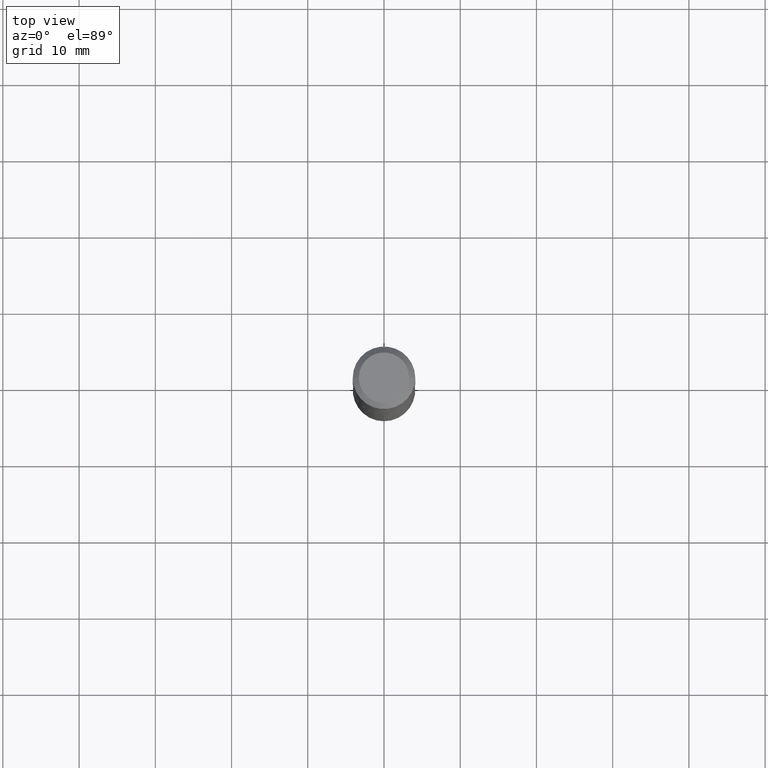
[diagram: clean part render]
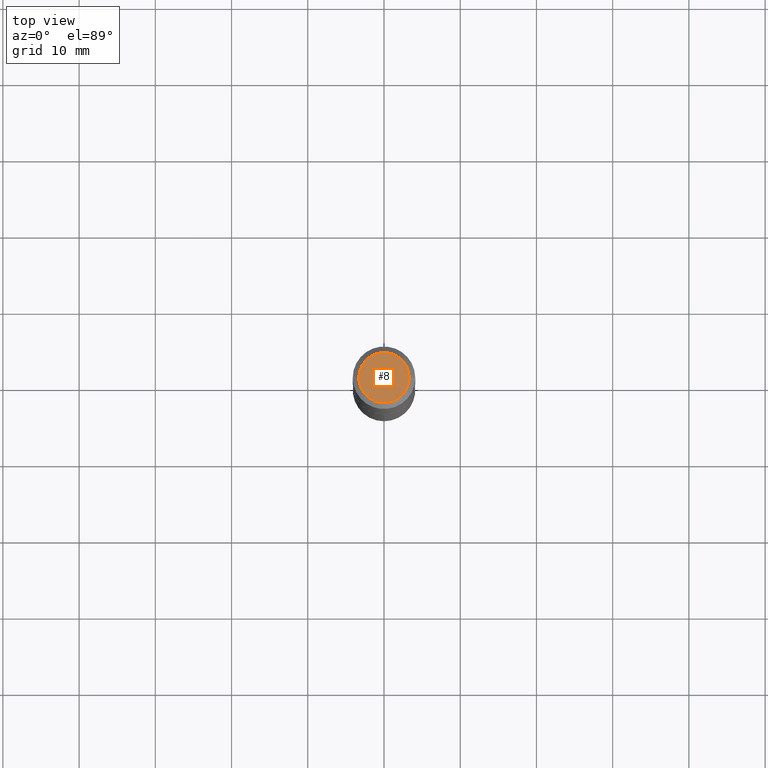
[diagram: same view with one face highlighted and labeled with its STEP entity id]
A machine part, top view. The second image highlights one B-rep face of the part: STEP entity #8.
In plain terms, the highlighted planar face has unit normal (0, -0, -1).
Its self-contained STEP definition (entity closure, byte-faithful):
#8 = ADVANCED_FACE ( 'NONE', ( #92 ), #117, .F. ) ;
#54 = ORIENTED_EDGE ( 'NONE', *, *, #123, .T. ) ;
#55 = AXIS2_PLACEMENT_3D ( 'NONE', #60, #333, #302 ) ;
#60 = CARTESIAN_POINT ( 'NONE',  ( -1.048192441068269648E-47, 1.496541006063948366E-33, 4.286263797015758030E-19 ) ) ;
#73 = DIRECTION ( 'NONE',  ( -2.445468806185136597E-29, 3.491481338843145583E-15, 1.000000000000000000 ) ) ;
#83 = DIRECTION ( 'NONE',  ( -1.000000000000000000, 6.982962677686265922E-15, -4.876176775795935793E-29 ) ) ;
#92 = FACE_OUTER_BOUND ( 'NONE', #263, .T. ) ;
#117 = PLANE ( 'NONE',  #353 ) ;
#123 = EDGE_CURVE ( 'NONE', #153, #199, #222, .T. ) ;
#135 = CIRCLE ( 'NONE', #229, 0.1302500000000000047 ) ;
#153 = VERTEX_POINT ( 'NONE', #389 ) ;
#199 = VERTEX_POINT ( 'NONE', #336 ) ;
#204 = ORIENTED_EDGE ( 'NONE', *, *, #339, .T. ) ;
#222 = CIRCLE ( 'NONE', #55, 0.1302500000000000047 ) ;
#229 = AXIS2_PLACEMENT_3D ( 'NONE', #254, #73, #371 ) ;
#232 = CARTESIAN_POINT ( 'NONE',  ( -5.240962205341348242E-48, 7.482705030319741831E-34, 2.143131898507879015E-19 ) ) ;
#254 = CARTESIAN_POINT ( 'NONE',  ( -1.048192441068269648E-47, 1.496541006063948366E-33, 4.286263797015758030E-19 ) ) ;
#263 = EDGE_LOOP ( 'NONE', ( #204, #54 ) ) ;
#302 = DIRECTION ( 'NONE',  ( 1.000000000000000000, -6.982962677686266711E-15, 4.876168088827840652E-29 ) ) ;
#333 = DIRECTION ( 'NONE',  ( -2.445468806185136597E-29, 3.491481338843145583E-15, 1.000000000000000000 ) ) ;
#336 = CARTESIAN_POINT ( 'NONE',  ( -0.1302500000000000047, 9.640852846880594641E-16, 4.286263796950244635E-19 ) ) ;
#339 = EDGE_CURVE ( 'NONE', #199, #153, #135, .T. ) ;
#349 = DIRECTION ( 'NONE',  ( 2.438088387897960049E-29, -3.491481338843145188E-15, -1.000000000000000000 ) ) ;
#353 = AXIS2_PLACEMENT_3D ( 'NONE', #232, #349, #83 ) ;
#371 = DIRECTION ( 'NONE',  ( 1.000000000000000000, -6.982962677686266711E-15, 4.876168088827840652E-29 ) ) ;
#389 = CARTESIAN_POINT ( 'NONE',  ( 0.1302500000000000047, -1.055329541344346597E-15, 4.286263797084456915E-19 ) ) ;